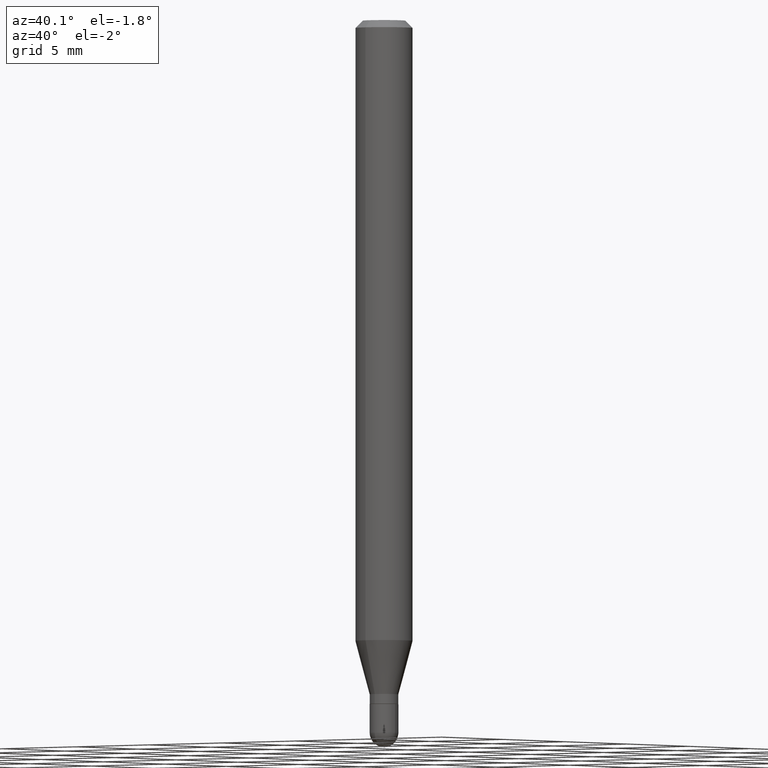
[diagram: clean part render]
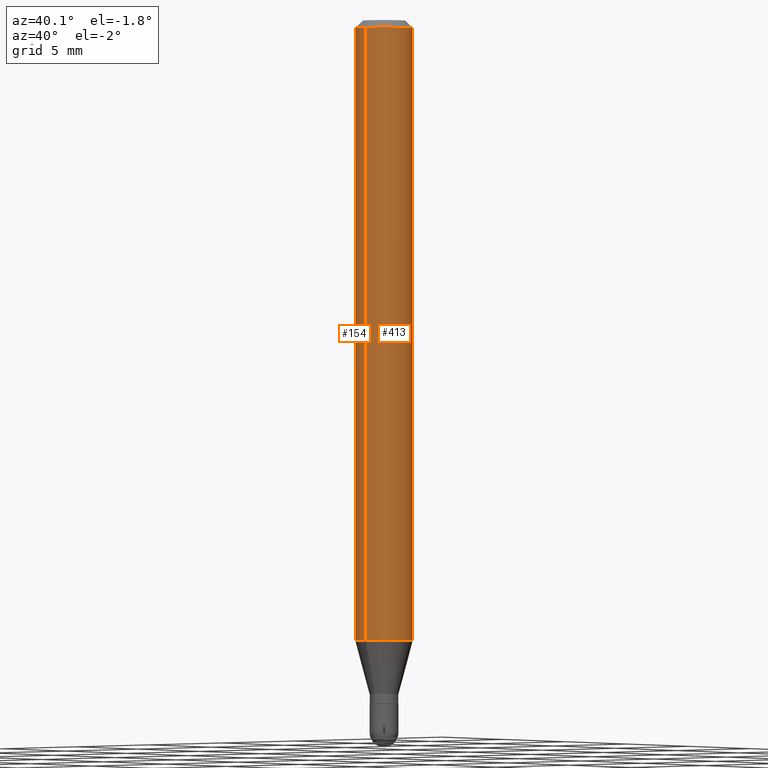
[diagram: same view with one multi-face feature highlighted, each face labeled with its STEP entity id]
A machine part, auxiliary view. The highlighted faces form ONE feature: a constant-radius fillet chain: 2 tangent blend faces with common blend radius 1.4999 mm. The faces share edges in the B-rep.
Their STEP definitions:
[1] entity #154 (Cylinder):
#13 = CARTESIAN_POINT ( 'NONE',  ( -4.123439461173429220E-16, -0.05905000000000448085, -1.277004501176717932 ) ) ;
#23 = DIRECTION ( 'NONE',  ( -2.445494840340628383E-29, 3.491444056450709535E-15, 1.000000000000000000 ) ) ;
#25 = ORIENTED_EDGE ( 'NONE', *, *, #382, .F. ) ;
#31 = DIRECTION ( 'NONE',  ( -2.445494840340628383E-29, 3.491444056450709141E-15, 1.000000000000000000 ) ) ;
#48 = FACE_OUTER_BOUND ( 'NONE', #258, .T. ) ;
#51 = CYLINDRICAL_SURFACE ( 'NONE', #277, 0.05904999999999999832 ) ;
#56 = CIRCLE ( 'NONE', #436, 0.05904999999999999832 ) ;
#60 = AXIS2_PLACEMENT_3D ( 'NONE', #172, #23, #344 ) ;
#65 = CARTESIAN_POINT ( 'NONE',  ( 4.195754854663705544E-16, 0.05904999999999994975, -0.01500000000000023016 ) ) ;
#95 = CARTESIAN_POINT ( 'NONE',  ( -4.123439461173739834E-16, -0.05904999999999999832, 2.061697715334143998E-16 ) ) ;
#101 = DIRECTION ( 'NONE',  ( -2.445494840340628383E-29, 3.491444056450709141E-15, 1.000000000000000000 ) ) ;
#130 = VERTEX_POINT ( 'NONE', #253 ) ;
#134 = CARTESIAN_POINT ( 'NONE',  ( 4.195754854663390985E-16, 0.05904999999999999832, -2.061697715334143998E-16 ) ) ;
#154 = ADVANCED_FACE ( 'NONE', ( #48 ), #51, .T. ) ;
#156 = CARTESIAN_POINT ( 'NONE',  ( 3.122907918719422036E-29, -4.458589775694255755E-15, -1.277004501176718154 ) ) ;
#166 = CARTESIAN_POINT ( 'NONE',  ( 4.195754854663701106E-16, 0.05904999999999551580, -1.277004501176718376 ) ) ;
#172 = CARTESIAN_POINT ( 'NONE',  ( 3.668242260510947899E-31, -5.237166084676072364E-17, -0.01500000000000002373 ) ) ;
#175 = VERTEX_POINT ( 'NONE', #65 ) ;
#197 = ORIENTED_EDGE ( 'NONE', *, *, #448, .F. ) ;
#249 = DIRECTION ( 'NONE',  ( -2.445494840340628383E-29, 3.491444056450709535E-15, 1.000000000000000000 ) ) ;
#253 = CARTESIAN_POINT ( 'NONE',  ( -4.123439461173736383E-16, -0.05905000000000005383, -0.01499999999999981730 ) ) ;
#258 = EDGE_LOOP ( 'NONE', ( #197, #336, #292, #25 ) ) ;
#267 = LINE ( 'NONE', #95, #500 ) ;
#277 = AXIS2_PLACEMENT_3D ( 'NONE', #441, #506, #503 ) ;
#284 = EDGE_CURVE ( 'NONE', #339, #364, #56, .T. ) ;
#292 = ORIENTED_EDGE ( 'NONE', *, *, #378, .T. ) ;
#301 = LINE ( 'NONE', #134, #376 ) ;
#323 = DIRECTION ( 'NONE',  ( -6.982962677686265922E-15, -1.000000000000000000, 4.626330217890369336E-15 ) ) ;
#336 = ORIENTED_EDGE ( 'NONE', *, *, #284, .T. ) ;
#339 = VERTEX_POINT ( 'NONE', #166 ) ;
#344 = DIRECTION ( 'NONE',  ( -6.982962677686265922E-15, -1.000000000000000000, 3.505890868245046092E-15 ) ) ;
#364 = VERTEX_POINT ( 'NONE', #13 ) ;
#376 = VECTOR ( 'NONE', #101, 39.37007874015748143 ) ;
#378 = EDGE_CURVE ( 'NONE', #364, #130, #267, .T. ) ;
#382 = EDGE_CURVE ( 'NONE', #175, #130, #455, .T. ) ;
#436 = AXIS2_PLACEMENT_3D ( 'NONE', #156, #249, #323 ) ;
#441 = CARTESIAN_POINT ( 'NONE',  ( 0.000000000000000000, 0.000000000000000000, 0.000000000000000000 ) ) ;
#448 = EDGE_CURVE ( 'NONE', #339, #175, #301, .T. ) ;
#455 = CIRCLE ( 'NONE', #60, 0.05904999999999999832 ) ;
#500 = VECTOR ( 'NONE', #31, 39.37007874015748143 ) ;
#503 = DIRECTION ( 'NONE',  ( -6.982962677686265922E-15, -1.000000000000000000, 3.491444056450709535E-15 ) ) ;
#506 = DIRECTION ( 'NONE',  ( -2.445494840340628383E-29, 3.491444056450709535E-15, 1.000000000000000000 ) ) ;
[2] entity #413 (Cylinder):
#13 = CARTESIAN_POINT ( 'NONE',  ( -4.123439461173429220E-16, -0.05905000000000448085, -1.277004501176717932 ) ) ;
#31 = DIRECTION ( 'NONE',  ( -2.445494840340628383E-29, 3.491444056450709141E-15, 1.000000000000000000 ) ) ;
#65 = CARTESIAN_POINT ( 'NONE',  ( 4.195754854663705544E-16, 0.05904999999999994975, -0.01500000000000023016 ) ) ;
#92 = DIRECTION ( 'NONE',  ( -2.445494840340628383E-29, 3.491444056450709535E-15, 1.000000000000000000 ) ) ;
#95 = CARTESIAN_POINT ( 'NONE',  ( -4.123439461173739834E-16, -0.05904999999999999832, 2.061697715334143998E-16 ) ) ;
#101 = DIRECTION ( 'NONE',  ( -2.445494840340628383E-29, 3.491444056450709141E-15, 1.000000000000000000 ) ) ;
#103 = DIRECTION ( 'NONE',  ( -6.982962677686265922E-15, -1.000000000000000000, 3.491444056450709535E-15 ) ) ;
#120 = CARTESIAN_POINT ( 'NONE',  ( 3.668242260510947899E-31, -5.237166084676072364E-17, -0.01500000000000002373 ) ) ;
#122 = AXIS2_PLACEMENT_3D ( 'NONE', #486, #377, #123 ) ;
#123 = DIRECTION ( 'NONE',  ( -6.982962677686265922E-15, -1.000000000000000000, 4.626330217890369336E-15 ) ) ;
#130 = VERTEX_POINT ( 'NONE', #253 ) ;
#134 = CARTESIAN_POINT ( 'NONE',  ( 4.195754854663390985E-16, 0.05904999999999999832, -2.061697715334143998E-16 ) ) ;
#139 = EDGE_LOOP ( 'NONE', ( #252, #315, #460, #433 ) ) ;
#166 = CARTESIAN_POINT ( 'NONE',  ( 4.195754854663701106E-16, 0.05904999999999551580, -1.277004501176718376 ) ) ;
#175 = VERTEX_POINT ( 'NONE', #65 ) ;
#177 = CARTESIAN_POINT ( 'NONE',  ( 0.000000000000000000, 0.000000000000000000, 0.000000000000000000 ) ) ;
#252 = ORIENTED_EDGE ( 'NONE', *, *, #355, .T. ) ;
#253 = CARTESIAN_POINT ( 'NONE',  ( -4.123439461173736383E-16, -0.05905000000000005383, -0.01499999999999981730 ) ) ;
#254 = DIRECTION ( 'NONE',  ( -6.982962677686265922E-15, -1.000000000000000000, 3.505890868245046092E-15 ) ) ;
#267 = LINE ( 'NONE', #95, #500 ) ;
#301 = LINE ( 'NONE', #134, #376 ) ;
#302 = EDGE_CURVE ( 'NONE', #130, #175, #338, .T. ) ;
#315 = ORIENTED_EDGE ( 'NONE', *, *, #448, .T. ) ;
#327 = AXIS2_PLACEMENT_3D ( 'NONE', #120, #92, #254 ) ;
#338 = CIRCLE ( 'NONE', #327, 0.05904999999999999832 ) ;
#339 = VERTEX_POINT ( 'NONE', #166 ) ;
#342 = FACE_OUTER_BOUND ( 'NONE', #139, .T. ) ;
#355 = EDGE_CURVE ( 'NONE', #364, #339, #470, .T. ) ;
#364 = VERTEX_POINT ( 'NONE', #13 ) ;
#376 = VECTOR ( 'NONE', #101, 39.37007874015748143 ) ;
#377 = DIRECTION ( 'NONE',  ( -2.445494840340628383E-29, 3.491444056450709535E-15, 1.000000000000000000 ) ) ;
#378 = EDGE_CURVE ( 'NONE', #364, #130, #267, .T. ) ;
#388 = CYLINDRICAL_SURFACE ( 'NONE', #400, 0.05904999999999999832 ) ;
#400 = AXIS2_PLACEMENT_3D ( 'NONE', #177, #465, #103 ) ;
#413 = ADVANCED_FACE ( 'NONE', ( #342 ), #388, .T. ) ;
#433 = ORIENTED_EDGE ( 'NONE', *, *, #378, .F. ) ;
#448 = EDGE_CURVE ( 'NONE', #339, #175, #301, .T. ) ;
#460 = ORIENTED_EDGE ( 'NONE', *, *, #302, .F. ) ;
#465 = DIRECTION ( 'NONE',  ( -2.445494840340628383E-29, 3.491444056450709535E-15, 1.000000000000000000 ) ) ;
#470 = CIRCLE ( 'NONE', #122, 0.05904999999999999832 ) ;
#486 = CARTESIAN_POINT ( 'NONE',  ( 3.122907918719422036E-29, -4.458589775694255755E-15, -1.277004501176718154 ) ) ;
#500 = VECTOR ( 'NONE', #31, 39.37007874015748143 ) ;